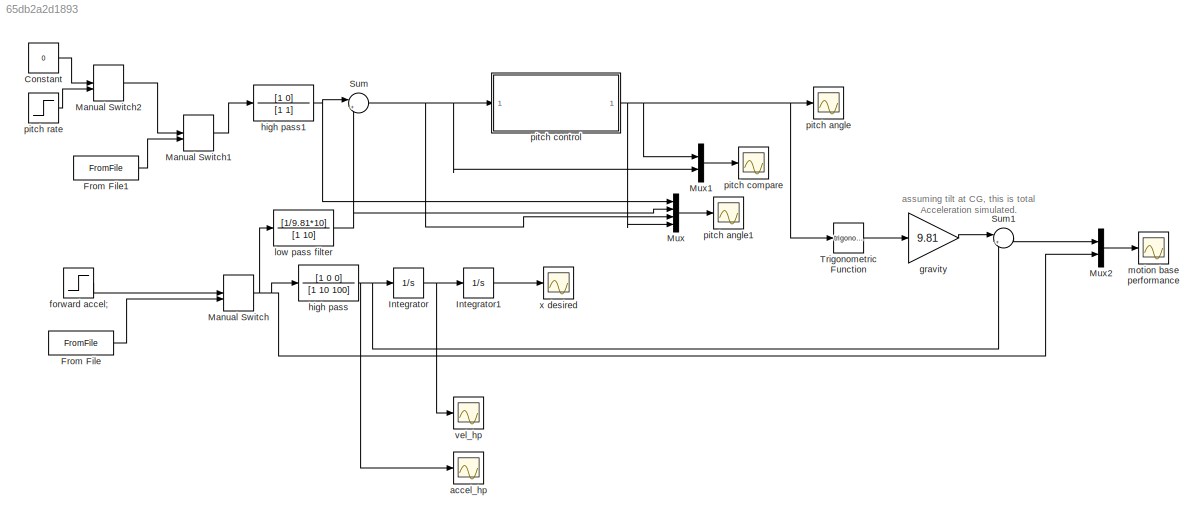
MODEL slx_65db2a2d1893
KIND model
CONFIG AbsTol = auto
CONFIG FixedStep = .001
CONFIG MaxStep = .01
CONFIG MinStep = auto
CONFIG RelTol = 1e-3
CONFIG SampleTimeConstraint = Unconstrained
CONFIG Solver = VariableStepAuto
CONFIG SolverMode = Auto
CONFIG SolverName = VariableStepAuto
CONFIG StartTime = 0.0
CONFIG StopTime = 5
BLOCK [Constant] Constant
  Value = 0
BLOCK [FromFile] From File
  FileName = ax_truck.mat
  SampleTime = 0
BLOCK [FromFile] From File1
  FileName = wy_truck.mat
  SampleTime = 0
BLOCK [Integrator] Integrator
  Ports = [1, 1]
BLOCK [Integrator] Integrator1
  Ports = [1, 1]
BLOCK [ManualSwitch] Manual Switch
BLOCK [ManualSwitch] Manual Switch1
BLOCK [ManualSwitch] Manual Switch2
BLOCK [Mux] Mux
  DisplayOption = bar
  Ports = [4, 1]
BLOCK [Mux] Mux1
  DisplayOption = bar
  Inputs = 2
  Ports = [2, 1]
BLOCK [Mux] Mux2
  DisplayOption = bar
  Inputs = 2
  Ports = [2, 1]
BLOCK [Sum] Sum
  IconShape = round
  InputSameDT = off
  Inputs = |++
  OutDataTypeStr = Inherit: Inherit via internal rule
  Ports = [2, 1]
  SaturateOnIntegerOverflow = off
BLOCK [Sum] Sum1
  IconShape = round
  InputSameDT = off
  Inputs = |++
  OutDataTypeStr = Inherit: Inherit via internal rule
  Ports = [2, 1]
  SaturateOnIntegerOverflow = off
BLOCK [Trigonometry] Trigonometric Function
  Ports = [1, 1]
BLOCK [Scope] accel_hp
  DataFormat = StructureWithTime
  Floating = off
  LimitDataPoints = off
  NumInputPorts = 1
  Ports = [1]
  SaveName = ScopeData7
  ShowLegends = off
  YMax = 1.06739
  YMin = -0.04644
BLOCK [Step] forward accel;
  SampleTime = 0
BLOCK [Gain] gravity
  Gain = 9.81
  OutDataTypeStr = Inherit: Inherit via internal rule
  ParamDataTypeStr = Inherit: Inherit via internal rule
  SaturateOnIntegerOverflow = off
BLOCK [TransferFcn] high pass
  Denominator = [1 10 100]
  Numerator = [1 0 0]
BLOCK [TransferFcn] high pass1
  Denominator = [1 1]
  Numerator = [1 0]
BLOCK [TransferFcn] low pass filter
  Denominator = [1 10]
  Numerator = [1/9.81*10]
BLOCK [Scope] motion base performance
  DataFormat = StructureWithTime
  Floating = off
  LimitDataPoints = off
  NumInputPorts = 1
  Ports = [1]
  SaveName = ScopeData5
  ShowLegends = off
  YMax = 1.06739
  YMin = -0.04644
BLOCK [Scope] pitch angle
  DataFormat = StructureWithTime
  Floating = off
  LimitDataPoints = off
  NumInputPorts = 1
  Ports = [1]
  ShowLegends = off
  YMax = 1.06739
  YMin = -0.04644
BLOCK [Scope] pitch angle1
  DataFormat = StructureWithTime
  Floating = off
  LimitDataPoints = off
  NumInputPorts = 1
  Ports = [1]
  SaveName = ScopeData1
  ShowLegends = off
  YMax = 0.11129
  YMin = -0.1508
BLOCK [Scope] pitch compare
  DataFormat = StructureWithTime
  Floating = off
  LimitDataPoints = off
  NumInputPorts = 1
  Ports = [1]
  SaveName = ScopeData4
  ShowLegends = off
  YMax = 0.0582
  YMin = -0.1449
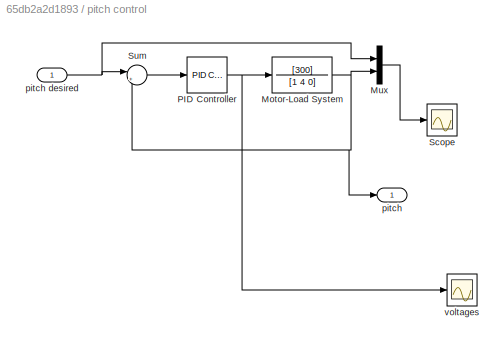
BLOCK [SubSystem] pitch control
  Ports = [1, 1]
  RequestExecContextInheritance = off
BLOCK [TransferFcn] pitch control/Motor-Load System
  Denominator = [1 4 0]
  Numerator = [300]
BLOCK [Mux] pitch control/Mux
  DisplayOption = bar
  Inputs = 2
  Ports = [2, 1]
BLOCK [Reference] pitch control/PID Controller  REF=simulink/Continuous/PID Controller
  AntiWindupMode = none
  Controller = PID
  D = .1
  DOutDataTypeStr = Inherit: Inherit via internal rule
  DOutMax = []
  DOutMin = []
  DParamDataTypeStr = Inherit: Inherit via internal rule
  DParamMax = []
  DParamMin = []
  DifferentiatorICPrevScaledInput = 0
  DifferentiatorOutDataTypeStr = Inherit: Inherit via internal rule
  DifferentiatorOutMax = []
  DifferentiatorOutMin = []
  ExternalReset = none
  FilterContinuousStateAttributes = ''
  FilterMethod = Forward Euler
  FilterOutDataTypeStr = Inherit: Inherit via internal rule
  FilterOutMax = []
  FilterOutMin = []
  FilterRTWStateStorageClass = Auto
  FilterStateMustResolveToSignalObject = off
  Form = Parallel
  I = 0
  IOutDataTypeStr = Inherit: Inherit via internal rule
  IOutMax = []
  IOutMin = []
  IParamDataTypeStr = Inherit: Inherit via internal rule
  IParamMax = []
  IParamMin = []
  IgnoreLimit = off
  InitialConditionForFilter = 0
  InitialConditionForIntegrator = 0
  InitialConditionSource = internal
  IntegratorContinuousStateAttributes = ''
  IntegratorMethod = Forward Euler
  IntegratorOutDataTypeStr = Inherit: Inherit via internal rule
  IntegratorOutMax = []
  IntegratorOutMin = []
  IntegratorRTWStateStorageClass = Auto
  IntegratorStateMustResolveToSignalObject = off
  Kb = 1
  KbOutDataTypeStr = Inherit: Inherit via internal rule
  KbOutMax = []
  KbOutMin = []
  KbParamDataTypeStr = Inherit: Inherit via internal rule
  KbParamMax = []
  KbParamMin = []
  Kt = 1
  KtOutDataTypeStr = Inherit: Inherit via internal rule
  KtOutMax = []
  KtOutMin = []
  KtParamDataTypeStr = Inherit: Inherit via internal rule
  KtParamMax = []
  KtParamMin = []
  LimitOutput = off
  LinearizeAsGain = on
  LockScale = off
  LowerSaturationLimit = -inf
  N = 100
  NOutDataTypeStr = Inherit: Inherit via internal rule
  NOutMax = []
  NOutMin = []
  NParamDataTypeStr = Inherit: Inherit via internal rule
  NParamMax = []
  NParamMin = []
  P = 1
  POutDataTypeStr = Inherit: Inherit via internal rule
  POutMax = []
  POutMin = []
  PParamDataTypeStr = Inherit: Inherit via internal rule
  PParamMax = []
  PParamMin = []
  Ports = [1, 1]
  RndMeth = Floor
  SampleTime = -1
  SaturateOnIntegerOverflow = off
  SaturationOutDataTypeStr = Inherit: Same as input
  SaturationOutMax = []
  SaturationOutMin = []
  SourceBlock = simulink/Continuous/PID Controller
  SourceType = PID 1dof
  SumAccumDataTypeStr = Inherit: Inherit via internal rule
  SumDAccumDataTypeStr = Inherit: Inherit via internal rule
  SumDOutDataTypeStr = Inherit: Inherit via internal rule
  SumDOutMax = []
  SumDOutMin = []
  SumI1AccumDataTypeStr = Inherit: Inherit via internal rule
  SumI1OutDataTypeStr = Inherit: Inherit via internal rule
  SumI1OutMax = []
  SumI1OutMin = []
  SumI2AccumDataTypeStr = Inherit: Inherit via internal rule
  SumI2OutDataTypeStr = Inherit: Inherit via internal rule
  SumI2OutMax = []
  SumI2OutMin = []
  SumI3AccumDataTypeStr = Inherit: Inherit via internal rule
  SumI3OutDataTypeStr = Inherit: Inherit via internal rule
  SumI3OutMax = []
  SumI3OutMin = []
  SumOutDataTypeStr = Inherit: Inherit via internal rule
  SumOutMax = []
  SumOutMin = []
  TimeDomain = Continuous-time
  TrackingMode = off
  UpperSaturationLimit = inf
  UseFilter = on
  ZeroCross = on
BLOCK [Scope] pitch control/Scope
  Floating = off
  NumInputPorts = 1
  Ports = [1]
  ShowLegends = off
BLOCK [Sum] pitch control/Sum
  IconShape = round
  InputSameDT = off
  Inputs = |+-
  OutDataTypeStr = Inherit: Inherit via internal rule
  Ports = [2, 1]
  SaturateOnIntegerOverflow = off
BLOCK [Outport] pitch control/pitch
  IconDisplay = Port number
BLOCK [Inport] pitch control/pitch desired 
  IconDisplay = Port number
BLOCK [Scope] pitch control/voltages
  Floating = off
  NumInputPorts = 1
  Ports = [1]
  SaveName = ScopeData3
  ShowLegends = off
  YMax = 1.03576
  YMin = -0.07925
BLOCK [Step] pitch rate
  SampleTime = 0
BLOCK [Scope] vel_hp 
  DataFormat = StructureWithTime
  Floating = off
  LimitDataPoints = off
  NumInputPorts = 1
  Ports = [1]
  SaveName = ScopeData6
  ShowLegends = off
  YMax = 1.06739
  YMin = -0.04644
BLOCK [Scope] x desired
  DataFormat = StructureWithTime
  Floating = off
  LimitDataPoints = off
  NumInputPorts = 1
  Ports = [1]
  SaveName = ScopeData2
  ShowLegends = off
  YMax = 1.06739
  YMin = -0.04644
ANNOTATION (root): assuming tilt at CG, this is total Acceleration simulated.
LINE Constant:1 -> Manual Switch2:1
LINE From File1:1 -> Manual Switch1:2
LINE From File:1 -> Manual Switch:2
LINE Integrator1:1 -> x desired:1
NET Integrator:1 -> Integrator1:1, vel_hp :1
LINE Manual Switch1:1 -> high pass1:1
LINE Manual Switch2:1 -> Manual Switch1:1
NET Manual Switch:1 -> Mux2:2, high pass:1, low pass filter:1
LINE Mux1:1 -> pitch compare:1
LINE Mux2:1 -> motion base performance:1
LINE Mux:1 -> pitch angle1:1
LINE Sum1:1 -> Mux2:1
NET Sum:1 -> Mux1:2, Mux:3, pitch control:1
LINE Trigonometric Function:1 -> gravity:1
LINE forward accel;:1 -> Manual Switch:1
LINE gravity:1 -> Sum1:1
NET high pass1:1 -> Mux:1, Sum:1
NET high pass:1 -> Integrator:1, Sum1:2, accel_hp:1
NET low pass filter:1 -> Mux:2, Sum:2
NET pitch control/Motor-Load System:1 -> pitch control/Mux:2, pitch control/Sum:2, pitch control/pitch:1
LINE pitch control/Mux:1 -> pitch control/Scope:1
NET pitch control/PID Controller:1 -> pitch control/Motor-Load System:1, pitch control/voltages:1
LINE pitch control/Sum:1 -> pitch control/PID Controller:1
NET pitch control/pitch desired :1 -> pitch control/Mux:1, pitch control/Sum:1
NET pitch control:1 -> Mux1:1, Mux:4, Trigonometric Function:1, pitch angle:1
LINE pitch rate:1 -> Manual Switch2:2
note: NET lines group one-source signal fan-out (src -> all destinations, sorted); 1:1 wires keep LINE
